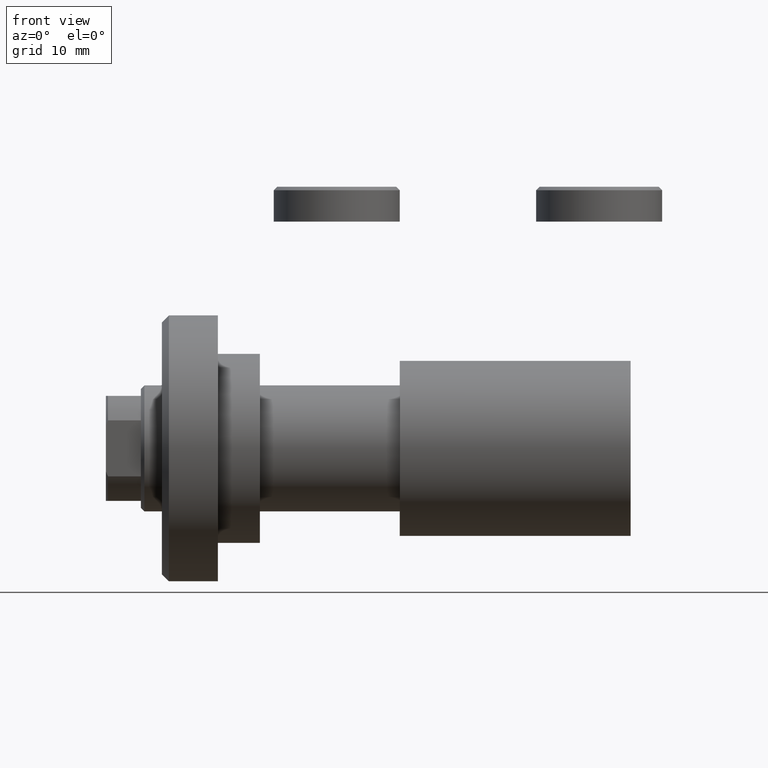
[diagram: clean part render]
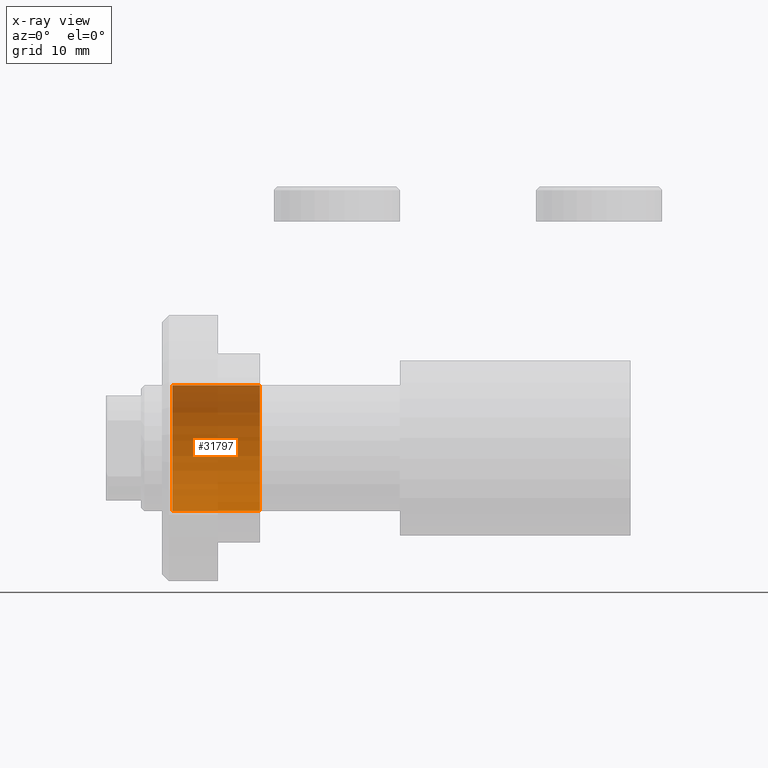
[diagram: x-ray — body ghosted, one internal face saturated and labeled with its STEP entity id]
A machine part, front view, then the same camera in x-ray: the body is ghosted and one INTERNAL B-rep face — a face not visible from any outside direction — is saturated and labeled: STEP entity #31797.
In plain terms, the highlighted cylindrical surface (partial cylindrical patch) has radius 9 mm, axis along (-1, 0, 0).
Its self-contained STEP definition (entity closure, byte-faithful):
#2453 = CARTESIAN_POINT ( 'NONE',  ( -11.00000000000000000, 1.102182119232617517E-15, 9.000000000000000000 ) ) ;
#2954 = DIRECTION ( 'NONE',  ( 0.000000000000000000, 0.000000000000000000, -1.000000000000000000 ) ) ;
#5302 = VERTEX_POINT ( 'NONE', #11195 ) ;
#6245 = FACE_OUTER_BOUND ( 'NONE', #11785, .T. ) ;
#6467 = CARTESIAN_POINT ( 'NONE',  ( -11.00000000000000000, 0.000000000000000000, 0.000000000000000000 ) ) ;
#6867 = DIRECTION ( 'NONE',  ( 1.000000000000000000, 0.000000000000000000, 0.000000000000000000 ) ) ;
#7086 = EDGE_CURVE ( 'NONE', #9065, #42221, #7682, .T. ) ;
#7282 = VERTEX_POINT ( 'NONE', #2453 ) ;
#7682 = CIRCLE ( 'NONE', #29808, 9.000000000000000000 ) ;
#8372 = LINE ( 'NONE', #36969, #32144 ) ;
#9065 = VERTEX_POINT ( 'NONE', #30127 ) ;
#9489 = DIRECTION ( 'NONE',  ( 0.000000000000000000, 0.000000000000000000, -1.000000000000000000 ) ) ;
#10322 = LINE ( 'NONE', #45362, #17363 ) ;
#11195 = CARTESIAN_POINT ( 'NONE',  ( -11.00000000000000000, 0.000000000000000000, -9.000000000000000000 ) ) ;
#11420 = EDGE_CURVE ( 'NONE', #7282, #9065, #10322, .T. ) ;
#11785 = EDGE_LOOP ( 'NONE', ( #39611, #22692, #27251, #31338 ) ) ;
#15793 = CIRCLE ( 'NONE', #40091, 9.000000000000000000 ) ;
#16473 = EDGE_CURVE ( 'NONE', #5302, #42221, #8372, .T. ) ;
#17363 = VECTOR ( 'NONE', #28072, 1000.000000000000000 ) ;
#20483 = CARTESIAN_POINT ( 'NONE',  ( 1.499999999999999556, 0.000000000000000000, 0.000000000000000000 ) ) ;
#20532 = DIRECTION ( 'NONE',  ( 1.000000000000000000, -0.000000000000000000, -0.000000000000000000 ) ) ;
#20666 = DIRECTION ( 'NONE',  ( 1.000000000000000000, 0.000000000000000000, 0.000000000000000000 ) ) ;
#22692 = ORIENTED_EDGE ( 'NONE', *, *, #11420, .T. ) ;
#25460 = CARTESIAN_POINT ( 'NONE',  ( 1.499999999999999556, 0.000000000000000000, -9.000000000000000000 ) ) ;
#27251 = ORIENTED_EDGE ( 'NONE', *, *, #7086, .T. ) ;
#28072 = DIRECTION ( 'NONE',  ( 1.000000000000000000, -0.000000000000000000, -0.000000000000000000 ) ) ;
#29808 = AXIS2_PLACEMENT_3D ( 'NONE', #20483, #6867, #2954 ) ;
#29816 = DIRECTION ( 'NONE',  ( 1.000000000000000000, -0.000000000000000000, -0.000000000000000000 ) ) ;
#30127 = CARTESIAN_POINT ( 'NONE',  ( 1.499999999999999556, 1.102182119232617517E-15, 9.000000000000000000 ) ) ;
#31273 = DIRECTION ( 'NONE',  ( 0.000000000000000000, 0.000000000000000000, -1.000000000000000000 ) ) ;
#31338 = ORIENTED_EDGE ( 'NONE', *, *, #16473, .F. ) ;
#31738 = AXIS2_PLACEMENT_3D ( 'NONE', #6467, #20532, #9489 ) ;
#31797 = ADVANCED_FACE ( 'NONE', ( #6245 ), #41073, .F. ) ;
#32144 = VECTOR ( 'NONE', #29816, 1000.000000000000000 ) ;
#36969 = CARTESIAN_POINT ( 'NONE',  ( -11.00000000000000000, 0.000000000000000000, -9.000000000000000000 ) ) ;
#39611 = ORIENTED_EDGE ( 'NONE', *, *, #45429, .F. ) ;
#40091 = AXIS2_PLACEMENT_3D ( 'NONE', #41656, #20666, #31273 ) ;
#41073 = CYLINDRICAL_SURFACE ( 'NONE', #31738, 9.000000000000000000 ) ;
#41656 = CARTESIAN_POINT ( 'NONE',  ( -11.00000000000000000, 0.000000000000000000, 0.000000000000000000 ) ) ;
#42221 = VERTEX_POINT ( 'NONE', #25460 ) ;
#45362 = CARTESIAN_POINT ( 'NONE',  ( -11.00000000000000000, 1.102182119232617517E-15, 9.000000000000000000 ) ) ;
#45429 = EDGE_CURVE ( 'NONE', #7282, #5302, #15793, .T. ) ;